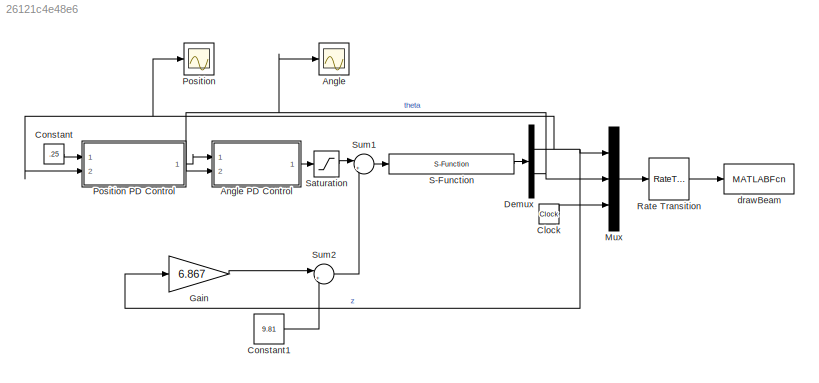
MODEL slx_26121c4e48e6
KIND model
CONFIG AbsTol = auto
CONFIG EnableMultiTasking = off
CONFIG FixedStep = auto
CONFIG InitFcn = ball_on_beam_param
CONFIG MaxStep = 1
CONFIG MinStep = auto
CONFIG RelTol = 1e-3
CONFIG SampleTimeConstraint = Unconstrained
CONFIG Solver = ode45
CONFIG SolverName = ode45
CONFIG StartTime = 0.0
CONFIG StopTime = 100
BLOCK [Scope] Angle
  Floating = off
  NumInputPorts = 1
  Ports = [1]
  ScopeSpecificationString = Simulink.scopes.TimeScopeBlockCfg('CurrentConfiguration', extmgr.ConfigurationSet(extmgr.Configuration('Core','General UI',true),extmgr.Configuration('Core','Source UI',true),extmgr.Configuration('Sources','WiredSimulink',true,'DataLoggingVariableName','ScopeData1'),extmgr.Configuration('Visuals','Time Domain',true,'SerializedDisplays',{struct('MinYLimReal','-0.00157','MaxYLimReal','0.00446','YLab...<+1386ch>
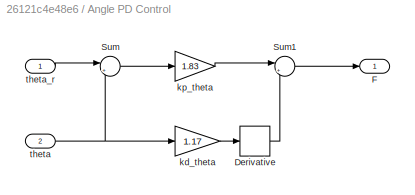
BLOCK [SubSystem] Angle PD Control
  Ports = [2, 1]
  RequestExecContextInheritance = off
BLOCK [Derivative] Angle PD Control/Derivative
BLOCK [Outport] Angle PD Control/F
  IconDisplay = Port number
BLOCK [Sum] Angle PD Control/Sum
  IconShape = round
  InputSameDT = off
  Inputs = |+-
  OutDataTypeStr = Inherit: Inherit via internal rule
  Ports = [2, 1]
  SaturateOnIntegerOverflow = off
BLOCK [Sum] Angle PD Control/Sum1
  IconShape = round
  InputSameDT = off
  Inputs = |+-
  OutDataTypeStr = Inherit: Inherit via internal rule
  Ports = [2, 1]
  SaturateOnIntegerOverflow = off
BLOCK [Gain] Angle PD Control/kd_theta
  Gain = 1.17
  OutDataTypeStr = Inherit: Inherit via internal rule
  ParamDataTypeStr = Inherit: Inherit via internal rule
  SaturateOnIntegerOverflow = off
BLOCK [Gain] Angle PD Control/kp_theta
  Gain = 1.83
  OutDataTypeStr = Inherit: Inherit via internal rule
  ParamDataTypeStr = Inherit: Inherit via internal rule
  SaturateOnIntegerOverflow = off
BLOCK [Inport] Angle PD Control/theta
  IconDisplay = Port number
  Port = 2
BLOCK [Inport] Angle PD Control/theta_r
  IconDisplay = Port number
BLOCK [Clock] Clock
BLOCK [Constant] Constant
  Value = .25
BLOCK [Constant] Constant1
  Value = 9.81
BLOCK [Demux] Demux
  DisplayOption = bar
  Outputs = 2
  Ports = [1, 2]
BLOCK [Gain] Gain
  Gain = 6.867
  OutDataTypeStr = Inherit: Inherit via internal rule
  ParamDataTypeStr = Inherit: Inherit via internal rule
  SaturateOnIntegerOverflow = off
BLOCK [Mux] Mux
  DisplayOption = bar
  Inputs = 3
  Ports = [3, 1]
BLOCK [Scope] Position
  Floating = off
  NumInputPorts = 1
  Ports = [1]
  ScopeSpecificationString = Simulink.scopes.TimeScopeBlockCfg('CurrentConfiguration', extmgr.ConfigurationSet(extmgr.Configuration('Core','General UI',true),extmgr.Configuration('Core','Source UI',true),extmgr.Configuration('Sources','WiredSimulink',true),extmgr.Configuration('Visuals','Time Domain',true,'SerializedDisplays',{struct('MinYLimReal','0.12254','MaxYLimReal','1.0975','YLabelReal','','MinYLimMag','0.12254','MaxYLi...<+1365ch>
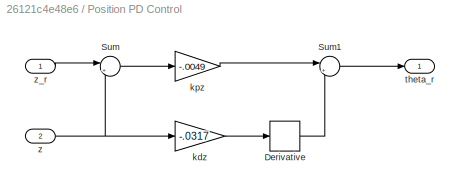
BLOCK [SubSystem] Position PD Control
  Ports = [2, 1]
  RequestExecContextInheritance = off
BLOCK [Derivative] Position PD Control/Derivative
BLOCK [Sum] Position PD Control/Sum
  IconShape = round
  InputSameDT = off
  Inputs = |+-
  OutDataTypeStr = Inherit: Inherit via internal rule
  Ports = [2, 1]
  SaturateOnIntegerOverflow = off
BLOCK [Sum] Position PD Control/Sum1
  IconShape = round
  InputSameDT = off
  Inputs = |+-
  OutDataTypeStr = Inherit: Inherit via internal rule
  Ports = [2, 1]
  SaturateOnIntegerOverflow = off
BLOCK [Gain] Position PD Control/kdz
  Gain = -.0317
  OutDataTypeStr = Inherit: Inherit via internal rule
  ParamDataTypeStr = Inherit: Inherit via internal rule
  SaturateOnIntegerOverflow = off
BLOCK [Gain] Position PD Control/kpz
  Gain = -.0049
  OutDataTypeStr = Inherit: Inherit via internal rule
  ParamDataTypeStr = Inherit: Inherit via internal rule
  SaturateOnIntegerOverflow = off
BLOCK [Outport] Position PD Control/theta_r
  IconDisplay = Port number
BLOCK [Inport] Position PD Control/z
  IconDisplay = Port number
  Port = 2
BLOCK [Inport] Position PD Control/z_r
  IconDisplay = Port number
BLOCK [RateTransition] Rate Transition
  OutPortSampleTime = Par.t_plot
BLOCK [S-Function] S-Function
  EnableBusSupport = off
  FunctionName = ball_on_beam_dynamics
  Parameters = Par
  Ports = [1, 1]
  SFcnIsStateOwnerBlock = off
  SFunctionDeploymentMode = off
BLOCK [Saturate] Saturation
  InputPortMap = u0
  LowerLimit = -15
  Ports = [1, 1]
  UpperLimit = 15
BLOCK [Sum] Sum1
  IconShape = round
  InputSameDT = off
  Inputs = |++
  OutDataTypeStr = Inherit: Inherit via internal rule
  Ports = [2, 1]
  SaturateOnIntegerOverflow = off
BLOCK [Sum] Sum2
  IconShape = round
  InputSameDT = off
  Inputs = |++
  OutDataTypeStr = Inherit: Inherit via internal rule
  Ports = [2, 1]
  SaturateOnIntegerOverflow = off
BLOCK [MATLABFcn] drawBeam
  MATLABFcn = ball_on_beam_animation(u)
  OutputDimensions = 0
  Ports = [1]
LINE Angle PD Control/Derivative:1 -> Angle PD Control/Sum1:2
LINE Angle PD Control/Sum1:1 -> Angle PD Control/F:1
LINE Angle PD Control/Sum:1 -> Angle PD Control/kp_theta:1
LINE Angle PD Control/kd_theta:1 -> Angle PD Control/Derivative:1
LINE Angle PD Control/kp_theta:1 -> Angle PD Control/Sum1:1
NET Angle PD Control/theta:1 -> Angle PD Control/Sum:2, Angle PD Control/kd_theta:1
LINE Angle PD Control/theta_r:1 -> Angle PD Control/Sum:1
LINE Angle PD Control:1 -> Saturation:1
LINE Clock:1 -> Mux:3
LINE Constant1:1 -> Sum2:2
LINE Constant:1 -> Position PD Control:1
NET Demux:1 -> Gain:1, Mux:1, Position PD Control:2, Position:1
NET Demux:2 -> Angle PD Control:2, Angle:1, Mux:2
LINE Gain:1 -> Sum2:1
LINE Mux:1 -> Rate Transition:1
LINE Position PD Control/Derivative:1 -> Position PD Control/Sum1:2
LINE Position PD Control/Sum1:1 -> Position PD Control/theta_r:1
LINE Position PD Control/Sum:1 -> Position PD Control/kpz:1
LINE Position PD Control/kdz:1 -> Position PD Control/Derivative:1
LINE Position PD Control/kpz:1 -> Position PD Control/Sum1:1
NET Position PD Control/z:1 -> Position PD Control/Sum:2, Position PD Control/kdz:1
LINE Position PD Control/z_r:1 -> Position PD Control/Sum:1
LINE Position PD Control:1 -> Angle PD Control:1
LINE Rate Transition:1 -> drawBeam:1
LINE S-Function:1 -> Demux:1
LINE Saturation:1 -> Sum1:1
LINE Sum1:1 -> S-Function:1
LINE Sum2:1 -> Sum1:2
note: NET lines group one-source signal fan-out (src -> all destinations, sorted); 1:1 wires keep LINE
